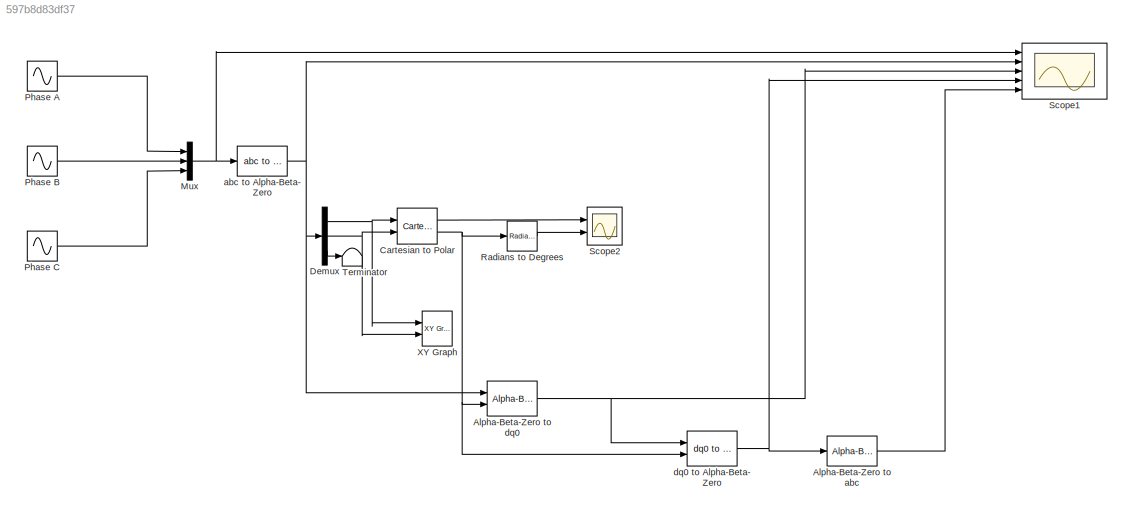
MODEL slx_597b8d83df37
KIND model
CONFIG AbsTol = auto
CONFIG FixedStep = auto
CONFIG InitFcn = clear all;\nclose all;
CONFIG MaxStep = auto
CONFIG MinStep = auto
CONFIG RelTol = 1e-3
CONFIG SampleTimeConstraint = Unconstrained
CONFIG Solver = ode45
CONFIG SolverMode = Auto
CONFIG SolverName = ode45
CONFIG StartTime = 0.0
CONFIG StopTime = 0.08
BLOCK [Reference] Alpha-Beta-Zero to abc  REF=powerlib_meascontrol/Transformations/Alpha-Beta-Zero
to abc
  Ports = [1, 1]
  SourceBlock = powerlib_meascontrol/Transformations/Alpha-Beta-Zero\nto abc
  SourceType = Alpha-Beta-Zero to abc Transformation
BLOCK [Reference] Alpha-Beta-Zero to dq0  REF=powerlib_meascontrol/Transformations/Alpha-Beta-Zero
to dq0
  Alignment = Aligned with phase A axis
  Ports = [2, 1]
  SourceBlock = powerlib_meascontrol/Transformations/Alpha-Beta-Zero\nto dq0
  SourceType = Alpha-Beta-Zero to dq0 Transformation
BLOCK [Reference] Cartesian to Polar  REF=simulink_extras/Transformations/Cartesian to
Polar
  Ports = [2, 2]
  SourceBlock = simulink_extras/Transformations/Cartesian to\nPolar
  SourceType = Cart2Polar
BLOCK [Demux] Demux
  DisplayOption = bar
  Outputs = 3
  Ports = [1, 3]
BLOCK [Mux] Mux
  DisplayOption = bar
  Inputs = 3
  Ports = [3, 1]
BLOCK [Sin] Phase A
  Frequency = 50*2*pi
  Ports = [0, 1]
  SampleTime = 0
BLOCK [Sin] Phase B
  Frequency = 50*2*pi
  Phase = 4*pi/3
  Ports = [0, 1]
  SampleTime = 0
BLOCK [Sin] Phase C
  Frequency = 50*2*pi
  Phase = 2*pi/3
  Ports = [0, 1]
  SampleTime = 0
BLOCK [Reference] Radians to Degrees  REF=simulink_extras/Transformations/Radians
to Degrees
  Ports = [1, 1]
  SourceBlock = simulink_extras/Transformations/Radians\nto Degrees
  SourceType = RadiansToDegrees
BLOCK [Scope] Scope1
  Floating = off
  NumInputPorts = 5
  Ports = [5]
  SampleInput = on
  SampleTime = 10e-6
  SaveName = ScopeData1
  TimeRange = 0.04
  YMax = 1~1.25~1.25~1.25~1
  YMin = -1~-1.25~-0.25~-1.25~-1
BLOCK [Scope] Scope2
  Floating = off
  NumInputPorts = 2
  Ports = [2]
  SampleInput = on
  SampleTime = 10e-6
  TimeRange = 0.04
  YMax = 1.05~200
  YMin = 0.95~-200
BLOCK [Terminator] Terminator
BLOCK [Reference] XY Graph  REF=simulink/Sinks/XY Graph
  Ports = [2]
  SourceBlock = simulink/Sinks/XY Graph
  SourceType = XY scope.
  st = -1
  xmax = 1
  xmin = -1
  ymax = 1
  ymin = -1
BLOCK [Reference] abc to Alpha-Beta-Zero  REF=powerlib_meascontrol/Transformations/abc to
Alpha-Beta-Zero
  Ports = [1, 1]
  SourceBlock = powerlib_meascontrol/Transformations/abc to\nAlpha-Beta-Zero
  SourceType = abc to Alpha-Beta-Zero Transformation
BLOCK [Reference] dq0 to Alpha-Beta-Zero  REF=powerlib_meascontrol/Transformations/dq0 to
Alpha-Beta-Zero
  Alignment = Aligned with phase A axis
  Ports = [2, 1]
  SourceBlock = powerlib_meascontrol/Transformations/dq0 to\nAlpha-Beta-Zero
  SourceType = dq0 to Alpha-Beta-Zero Transformation
LINE Alpha-Beta-Zero to abc:1 -> Scope1:5
NET Alpha-Beta-Zero to dq0:1 -> Scope1:3, dq0 to Alpha-Beta-Zero:1
LINE Cartesian to Polar:1 -> Scope2:1
NET Cartesian to Polar:2 -> Alpha-Beta-Zero to dq0:2, Radians to Degrees:1, dq0 to Alpha-Beta-Zero:2
NET Demux:1 -> Cartesian to Polar:1, XY Graph:1
NET Demux:2 -> Cartesian to Polar:2, XY Graph:2
LINE Demux:3 -> Terminator:1
NET Mux:1 -> Scope1:1, abc to Alpha-Beta-Zero:1
LINE Phase A:1 -> Mux:1
LINE Phase B:1 -> Mux:2
LINE Phase C:1 -> Mux:3
LINE Radians to Degrees:1 -> Scope2:2
NET abc to Alpha-Beta-Zero:1 -> Alpha-Beta-Zero to dq0:1, Demux:1, Scope1:2
NET dq0 to Alpha-Beta-Zero:1 -> Alpha-Beta-Zero to abc:1, Scope1:4
note: NET lines group one-source signal fan-out (src -> all destinations, sorted); 1:1 wires keep LINE
